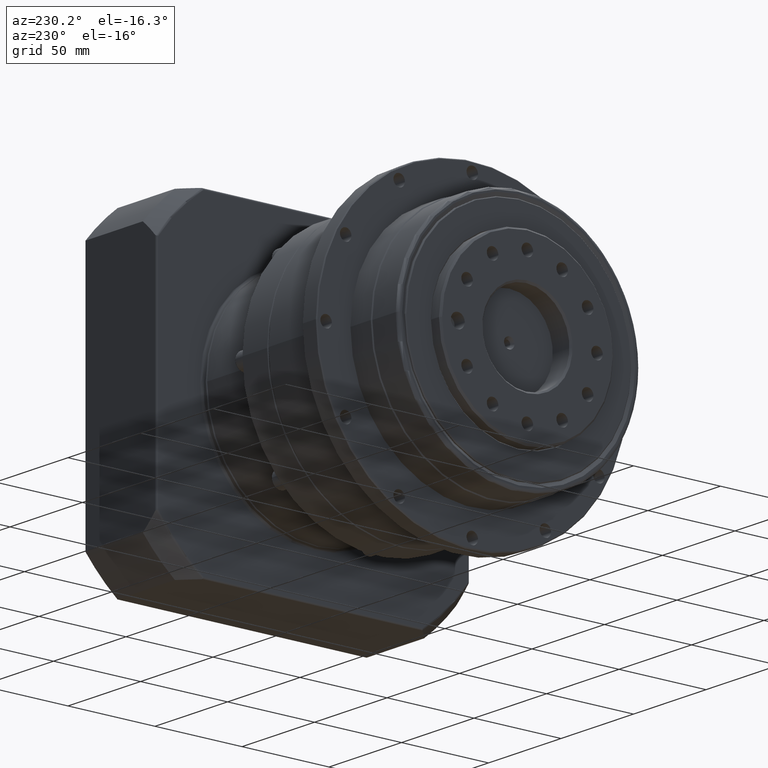
[diagram: clean part render]
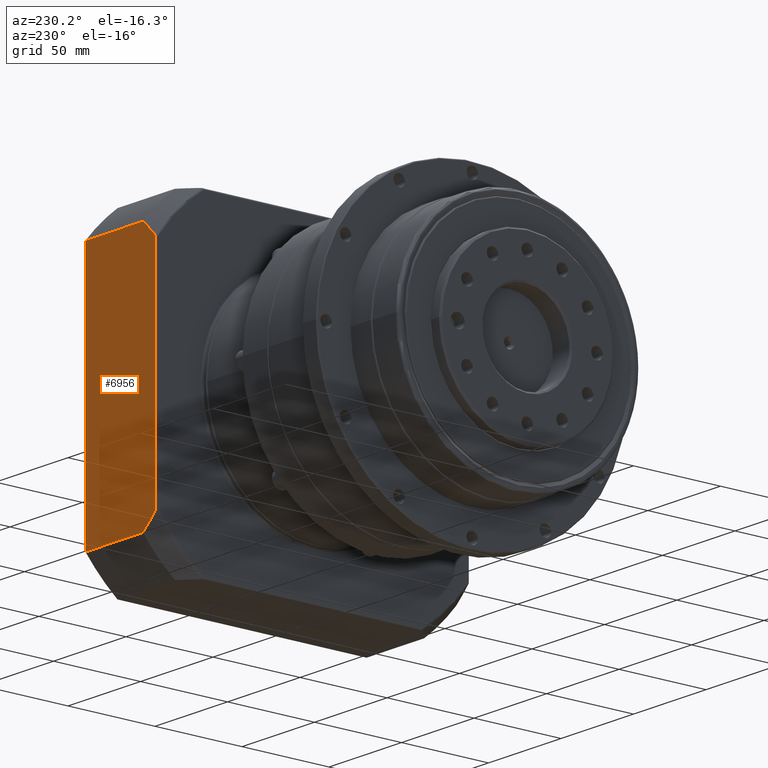
[diagram: same view with one face highlighted and labeled with its STEP entity id]
A machine part, auxiliary view. The second image highlights one B-rep face of the part: STEP entity #6956.
In plain terms, the highlighted planar face has unit normal (-0, 1, 0).
Its self-contained STEP definition (entity closure, byte-faithful):
#244=LINE('',#10974,#527);
#272=LINE('',#11311,#555);
#274=LINE('',#11346,#557);
#277=LINE('',#11442,#560);
#527=VECTOR('',#8689,127.106254763485);
#555=VECTOR('',#8893,143.178210632764);
#557=VECTOR('',#8917,39.6217782649107);
#560=VECTOR('',#9010,39.6217782649107);
#1902=FACE_OUTER_BOUND('',#2491,.T.);
#2491=EDGE_LOOP('',(#5569,#5570,#5571,#5572,#5573,#5574));
#3105=CIRCLE('',#7518,93.8083151964686);
#3161=CIRCLE('',#7611,93.8083151964686);
#3579=VERTEX_POINT('',#10964);
#3580=VERTEX_POINT('',#10973);
#3594=VERTEX_POINT('',#11086);
#3660=VERTEX_POINT('',#11295);
#3661=VERTEX_POINT('',#11306);
#3668=VERTEX_POINT('',#11397);
#4264=EDGE_CURVE('',#3579,#3580,#244,.T.);
#4287=EDGE_CURVE('',#3579,#3594,#3105,.T.);
#4373=EDGE_CURVE('',#3661,#3660,#272,.T.);
#4383=EDGE_CURVE('',#3594,#3660,#274,.T.);
#4389=EDGE_CURVE('',#3668,#3580,#3161,.T.);
#4404=EDGE_CURVE('',#3661,#3668,#277,.T.);
#5569=ORIENTED_EDGE('',*,*,#4264,.F.);
#5570=ORIENTED_EDGE('',*,*,#4287,.T.);
#5571=ORIENTED_EDGE('',*,*,#4383,.T.);
#5572=ORIENTED_EDGE('',*,*,#4373,.F.);
#5573=ORIENTED_EDGE('',*,*,#4404,.T.);
#5574=ORIENTED_EDGE('',*,*,#4389,.T.);
#6636=PLANE('',#7649);
#6956=ADVANCED_FACE('',(#1902),#6636,.T.);
#7518=AXIS2_PLACEMENT_3D('',#11088,#8723,#8724);
#7611=AXIS2_PLACEMENT_3D('',#11398,#8934,#8935);
#7649=AXIS2_PLACEMENT_3D('',#11444,#9013,#9014);
#8689=DIRECTION('',(2.76291701760916E-15,2.22386105360086E-16,-1.));
#8723=DIRECTION('center_axis',(-1.1547538385897E-15,1.,2.22386105360083E-16));
#8724=DIRECTION('ref_axis',(2.76291701760916E-15,2.22386105360086E-16,-1.));
#8893=DIRECTION('',(-2.76291701760916E-15,-2.22386105360086E-16,1.));
#8917=DIRECTION('',(1.,1.1547538385897E-15,2.76291701760916E-15));
#8934=DIRECTION('center_axis',(-1.1547538385897E-15,1.,2.22386105360083E-16));
#8935=DIRECTION('ref_axis',(2.76291701760916E-15,2.22386105360086E-16,-1.));
#9010=DIRECTION('',(-1.,-1.1547538385897E-15,-2.76291701760916E-15));
#9013=DIRECTION('center_axis',(-1.1547538385897E-15,1.,2.22386105360083E-16));
#9014=DIRECTION('ref_axis',(2.8421709430404E-15,0.,-1.));
#10964=CARTESIAN_POINT('',(-77.9857500619039,198.296351812799,25.8715199041124));
#10973=CARTESIAN_POINT('',(-77.9857500619035,198.296351812799,-101.234734859373));
#10974=CARTESIAN_POINT('',(-77.9857500619038,198.296351812799,7.31839252236981));
#11086=CARTESIAN_POINT('',(-69.6075283268146,198.296351812799,33.9074978387516));
#11088=CARTESIAN_POINT('Origin',(-8.98575006190372,198.296351812799,-37.68160747763));
#11295=CARTESIAN_POINT('',(-29.9857500619039,198.296351812799,33.9074978387517));
#11306=CARTESIAN_POINT('',(-29.9857500619035,198.296351812799,-109.270712794012));
#11311=CARTESIAN_POINT('',(-29.9857500619038,198.296351812799,7.31839252236995));
#11346=CARTESIAN_POINT('',(-28.9857500619039,198.296351812799,33.9074978387517));
#11397=CARTESIAN_POINT('',(-69.6075283268142,198.296351812799,-109.270712794012));
#11398=CARTESIAN_POINT('Origin',(-8.98575006190372,198.296351812799,-37.68160747763));
#11442=CARTESIAN_POINT('',(-28.9857500619035,198.296351812799,-109.270712794012));
#11444=CARTESIAN_POINT('Origin',(-28.985750061904,198.296351812799,52.31839252237));